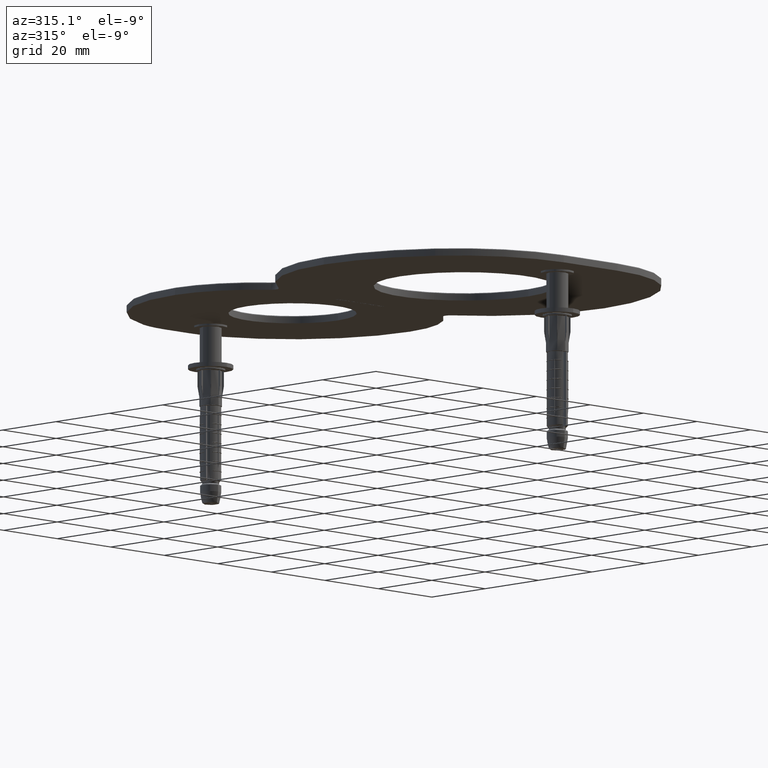
[diagram: clean part render]
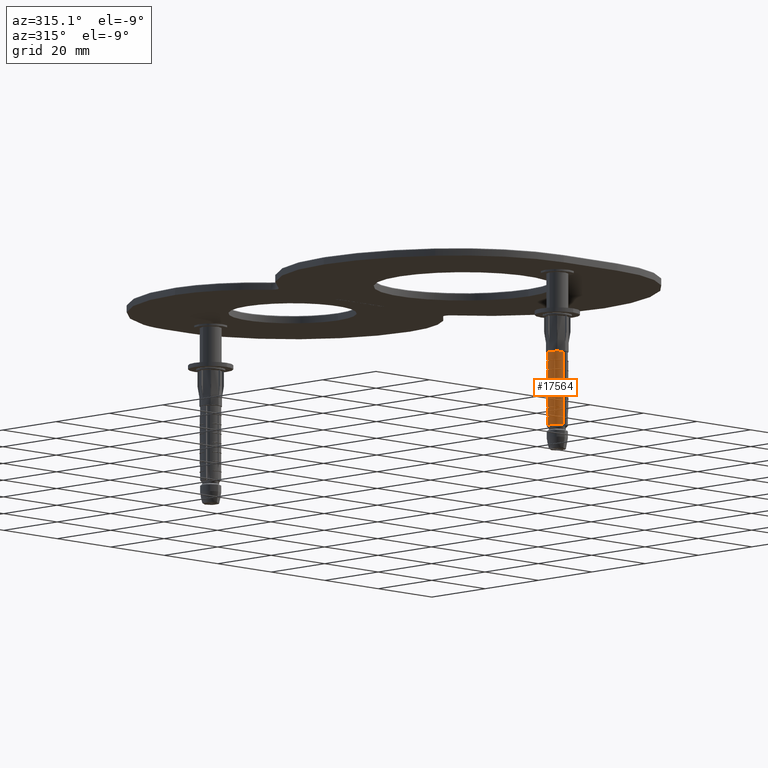
[diagram: same view with one face highlighted and labeled with its STEP entity id]
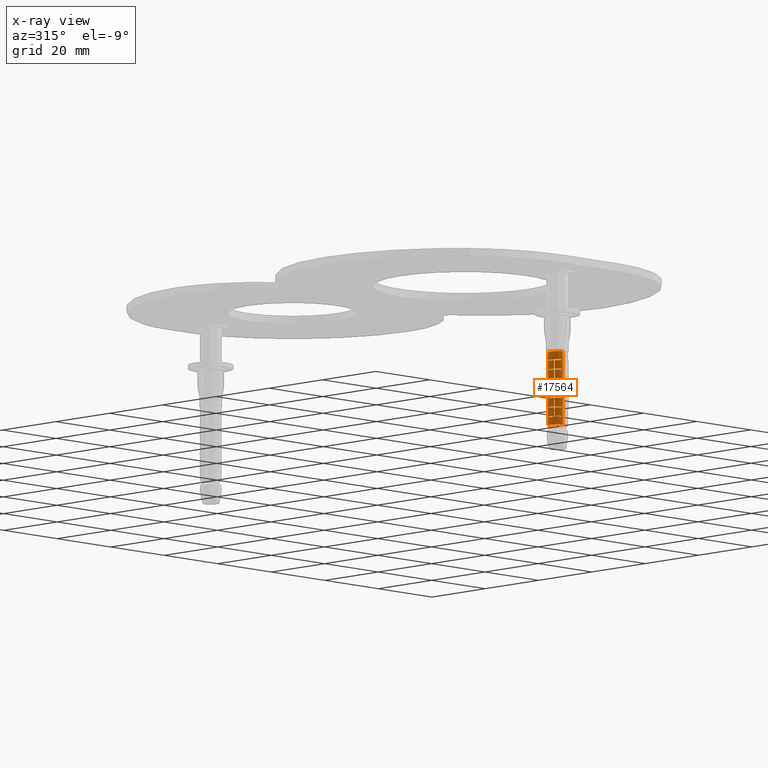
[diagram: x-ray of the same camera — body ghosted, the highlighted face saturated]
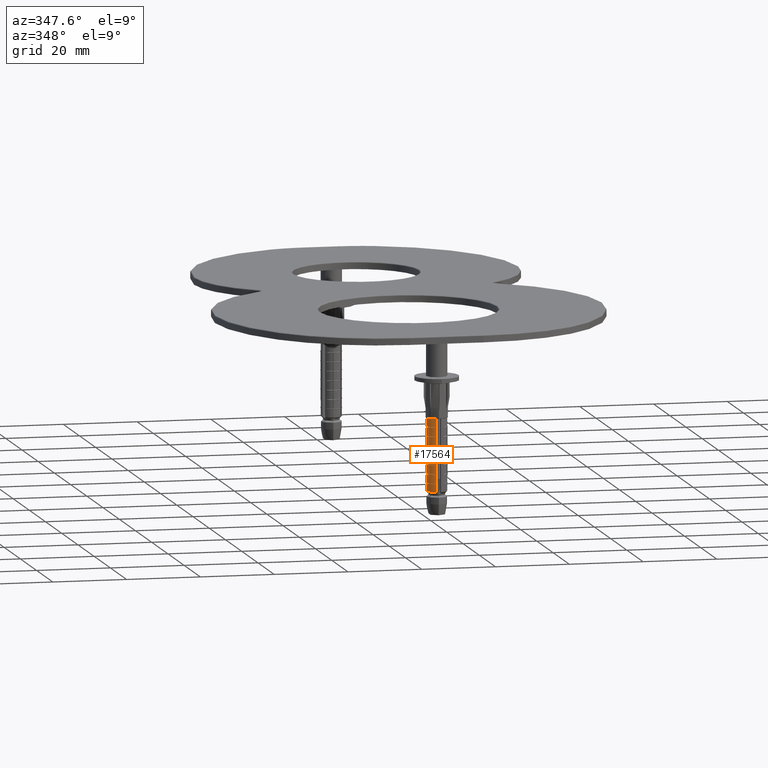
[diagram: same view with one face highlighted and labeled with its STEP entity id]
A machine part, auxiliary view. The second image highlights one B-rep face of the part: STEP entity #17564.
The next image is the same camera in x-ray: the body ghosted, the highlighted face saturated — about 0% of this face is hidden behind the body in this view.
A second angle (auxiliary view) of the same face is appended — the face is thin or edge-on in the first view.
In plain terms, the highlighted cylindrical surface (edge-blend (fillet) strip) has radius 2.8 mm, axis along (-0, -0, -1).
Its self-contained STEP definition (entity closure, byte-faithful):
#208 = DIRECTION ( 'NONE',  ( -4.540655609425253692E-18, 4.182044590197414905E-18, 1.000000000000000000 ) ) ;
#225 = CARTESIAN_POINT ( 'NONE',  ( 1.141974885770451016E-16, -1.051784214434649850E-16, -25.14999999999999858 ) ) ;
#252 = VERTEX_POINT ( 'NONE', #23879 ) ;
#377 = ORIENTED_EDGE ( 'NONE', *, *, #20713, .T. ) ;
#396 = DIRECTION ( 'NONE',  ( 0.8660254037844433705, 0.4999999999999920064, 0.000000000000000000 ) ) ;
#414 = LINE ( 'NONE', #24012, #38780 ) ;
#480 = DIRECTION ( 'NONE',  ( -0.000000000000000000, -6.803593328596414068E-18, -1.000000000000000000 ) ) ;
#544 = CARTESIAN_POINT ( 'NONE',  ( -2.767673818475161251, 0.4242424242424545633, -12.32500000000000107 ) ) ;
#655 = VERTEX_POINT ( 'NONE', #11659 ) ;
#701 = EDGE_CURVE ( 'NONE', #18191, #29613, #20053, .T. ) ;
#797 = DIRECTION ( 'NONE',  ( -0.000000000000000000, -6.803593328596414068E-18, -1.000000000000000000 ) ) ;
#821 = DIRECTION ( 'NONE',  ( -0.000000000000000000, -6.803593328596414068E-18, -1.000000000000000000 ) ) ;
#855 = DIRECTION ( 'NONE',  ( 0.8660254037844433705, 0.4999999999999920064, 0.000000000000000000 ) ) ;
#866 = LINE ( 'NONE', #38831, #11124 ) ;
#880 = VERTEX_POINT ( 'NONE', #4578 ) ;
#882 = VERTEX_POINT ( 'NONE', #32333 ) ;
#976 = CARTESIAN_POINT ( 'NONE',  ( -2.767673818475162140, 0.4242424242424545078, -20.10000000000000142 ) ) ;
#984 = ORIENTED_EDGE ( 'NONE', *, *, #34170, .T. ) ;
#1260 = AXIS2_PLACEMENT_3D ( 'NONE', #20635, #38938, #17560 ) ;
#1418 = CARTESIAN_POINT ( 'NONE',  ( -2.483748580117769222, -1.292668940898235030, -36.00000000000000000 ) ) ;
#1467 = VERTEX_POINT ( 'NONE', #32179 ) ;
#1670 = CARTESIAN_POINT ( 'NONE',  ( -2.483748580117768778, -1.292668940898234364, -14.84999999999999964 ) ) ;
#1698 = CIRCLE ( 'NONE', #4140, 2.799999999999999822 ) ;
#1778 = CARTESIAN_POINT ( 'NONE',  ( -1.016432192480563934, -2.608997048309781963, -36.00000000000000000 ) ) ;
#1890 = ORIENTED_EDGE ( 'NONE', *, *, #31252, .T. ) ;
#1980 = VERTEX_POINT ( 'NONE', #14093 ) ;
#1991 = EDGE_CURVE ( 'NONE', #29272, #28259, #33432, .T. ) ;
#1995 = VERTEX_POINT ( 'NONE', #1670 ) ;
#2070 = CARTESIAN_POINT ( 'NONE',  ( -2.361358431559908766, -1.504654896546356424, -24.94999999999999574 ) ) ;
#2090 = VERTEX_POINT ( 'NONE', #5170 ) ;
#2170 = ORIENTED_EDGE ( 'NONE', *, *, #39024, .T. ) ;
#2257 = DIRECTION ( 'NONE',  ( 0.000000000000000000, 6.803593328596414068E-18, 1.000000000000000000 ) ) ;
#2301 = CARTESIAN_POINT ( 'NONE',  ( 0.000000000000000000, -2.449293598294708880E-16, -36.00000000000000000 ) ) ;
#2334 = AXIS2_PLACEMENT_3D ( 'NONE', #9509, #9781, #19314 ) ;
#2420 = CARTESIAN_POINT ( 'NONE',  ( -1.016432192480563934, -2.608997048309782407, -22.62500000000000000 ) ) ;
#2474 = CIRCLE ( 'NONE', #31577, 2.799999999999999822 ) ;
#2580 = CARTESIAN_POINT ( 'NONE',  ( -2.767673818475161696, 0.4242424242424542857, -27.47499999999999076 ) ) ;
#2856 = CARTESIAN_POINT ( 'NONE',  ( -2.361358431559908322, -1.504654896546355980, -14.84999999999999964 ) ) ;
#2955 = ORIENTED_EDGE ( 'NONE', *, *, #8212, .T. ) ;
#2969 = AXIS2_PLACEMENT_3D ( 'NONE', #26620, #29498, #35740 ) ;
#3000 = AXIS2_PLACEMENT_3D ( 'NONE', #29720, #35826, #39120 ) ;
#3010 = VERTEX_POINT ( 'NONE', #6856 ) ;
#3094 = VECTOR ( 'NONE', #16525, 1000.000000000000000 ) ;
#3266 = CARTESIAN_POINT ( 'NONE',  ( -2.361358431559909210, -1.504654896546356424, -36.00000000000000000 ) ) ;
#3392 = DIRECTION ( 'NONE',  ( 0.8660254037844433705, 0.4999999999999920064, 0.000000000000000000 ) ) ;
#3450 = CARTESIAN_POINT ( 'NONE',  ( -2.483748580117768778, -1.292668940898234364, -17.57499999999999929 ) ) ;
#3585 = EDGE_CURVE ( 'NONE', #9171, #23911, #414, .T. ) ;
#3603 = DIRECTION ( 'NONE',  ( 0.8660254037844433705, 0.4999999999999920064, 0.000000000000000000 ) ) ;
#3678 = CARTESIAN_POINT ( 'NONE',  ( -0.6222222222222225652, -2.729988920521993823, -10.09999999999999787 ) ) ;
#3681 = EDGE_CURVE ( 'NONE', #252, #17792, #10156, .T. ) ;
#3701 = EDGE_CURVE ( 'NONE', #25250, #1995, #18900, .T. ) ;
#4140 = AXIS2_PLACEMENT_3D ( 'NONE', #10228, #31912, #28916 ) ;
#4143 = DIRECTION ( 'NONE',  ( 0.000000000000000000, 6.803593328596414068E-18, 1.000000000000000000 ) ) ;
#4197 = CARTESIAN_POINT ( 'NONE',  ( -2.361358431559908322, -1.504654896546355980, -17.57499999999999929 ) ) ;
#4217 = VERTEX_POINT ( 'NONE', #20499 ) ;
#4227 = CARTESIAN_POINT ( 'NONE',  ( -2.361358431559908766, -1.504654896546356424, -26.31052289814725853 ) ) ;
#4554 = EDGE_CURVE ( 'NONE', #30939, #29272, #16109, .T. ) ;
#4578 = CARTESIAN_POINT ( 'NONE',  ( -2.483748580117768778, -1.292668940898234364, -12.52500000000000213 ) ) ;
#4723 = CARTESIAN_POINT ( 'NONE',  ( -1.016432192480563934, -2.608997048309782407, -12.52500000000000213 ) ) ;
#4741 = CARTESIAN_POINT ( 'NONE',  ( -2.463716330369619456, -1.330570181226455873, -27.37920234786883356 ) ) ;
#4790 = CIRCLE ( 'NONE', #26230, 2.799999999999999378 ) ;
#4797 = ORIENTED_EDGE ( 'NONE', *, *, #36006, .T. ) ;
#4890 = DIRECTION ( 'NONE',  ( -4.540655609425253692E-18, 4.182044590197414905E-18, 1.000000000000000000 ) ) ;
#4914 = CIRCLE ( 'NONE', #24664, 2.799999999999999378 ) ;
#5011 = VECTOR ( 'NONE', #22451, 1000.000000000000000 ) ;
#5012 = DIRECTION ( 'NONE',  ( 0.000000000000000000, 6.803593328596414068E-18, 1.000000000000000000 ) ) ;
#5170 = CARTESIAN_POINT ( 'NONE',  ( -2.361358431559908766, -1.504654896546356424, -20.10000000000000142 ) ) ;
#5299 = LINE ( 'NONE', #1418, #16052 ) ;
#5314 = CARTESIAN_POINT ( 'NONE',  ( -2.767673818475162140, 0.4242424242424546743, -36.00000000000000000 ) ) ;
#5438 = DIRECTION ( 'NONE',  ( -4.540655609425253692E-18, 4.182044590197414905E-18, 1.000000000000000000 ) ) ;
#5563 = ORIENTED_EDGE ( 'NONE', *, *, #33450, .F. ) ;
#5584 = DIRECTION ( 'NONE',  ( 0.8660254037844433705, 0.4999999999999920064, 0.000000000000000000 ) ) ;
#5690 = LINE ( 'NONE', #38164, #21272 ) ;
#5730 = DIRECTION ( 'NONE',  ( -4.540655609425253692E-18, 4.182044590197414905E-18, 1.000000000000000000 ) ) ;
#5760 = ORIENTED_EDGE ( 'NONE', *, *, #38499, .T. ) ;
#5779 = DIRECTION ( 'NONE',  ( 0.8660254037844433705, 0.4999999999999920064, 0.000000000000000000 ) ) ;
#5842 = EDGE_CURVE ( 'NONE', #3010, #32384, #8579, .T. ) ;
#5844 = DIRECTION ( 'NONE',  ( -0.000000000000000000, -6.803593328596414068E-18, -1.000000000000000000 ) ) ;
#5864 = DIRECTION ( 'NONE',  ( -0.000000000000000000, -6.803593328596414068E-18, -1.000000000000000000 ) ) ;
#6014 = CARTESIAN_POINT ( 'NONE',  ( -1.016432192480563712, -2.608997048309782407, -36.00000000000000000 ) ) ;
#6027 = CIRCLE ( 'NONE', #9162, 2.799999999999999378 ) ;
#6056 = CARTESIAN_POINT ( 'NONE',  ( -2.460687915453515284, -1.336044528726880731, -27.57499999999999574 ) ) ;
#6081 = EDGE_CURVE ( 'NONE', #28110, #18429, #29426, .T. ) ;
#6139 = CARTESIAN_POINT ( 'NONE',  ( -2.483748580117769222, -1.292668940898234586, -19.89999999999999858 ) ) ;
#6162 = DIRECTION ( 'NONE',  ( -0.000000000000000000, -6.803593328596414068E-18, -1.000000000000000000 ) ) ;
#6334 = AXIS2_PLACEMENT_3D ( 'NONE', #11864, #39678, #15006 ) ;
#6347 = FACE_OUTER_BOUND ( 'NONE', #18354, .T. ) ;
#6379 = DIRECTION ( 'NONE',  ( -4.540655609425253692E-18, 4.182044590197414905E-18, 1.000000000000000000 ) ) ;
#6397 = CARTESIAN_POINT ( 'NONE',  ( 1.027323331632463865E-16, -9.461875885321650721E-17, -22.62500000000000000 ) ) ;
#6557 = LINE ( 'NONE', #3266, #32304 ) ;
#6639 = CARTESIAN_POINT ( 'NONE',  ( -2.460687915453515284, -1.336044528726880287, -24.94999999999999574 ) ) ;
#6654 = VECTOR ( 'NONE', #26113, 1000.000000000000000 ) ;
#6706 = EDGE_CURVE ( 'NONE', #9853, #15557, #15858, .T. ) ;
#6723 = ORIENTED_EDGE ( 'NONE', *, *, #25525, .F. ) ;
#6731 = CIRCLE ( 'NONE', #23893, 2.799999999999999378 ) ;
#6740 = DIRECTION ( 'NONE',  ( -4.540655609425253692E-18, 4.182044590197414905E-18, 1.000000000000000000 ) ) ;
#6824 = VECTOR ( 'NONE', #2257, 1000.000000000000000 ) ;
#6856 = CARTESIAN_POINT ( 'NONE',  ( -2.767673818475162140, 0.4242424242424546743, -17.57499999999999929 ) ) ;
#6869 = VERTEX_POINT ( 'NONE', #3678 ) ;
#6995 = B_SPLINE_CURVE_WITH_KNOTS ( 'NONE', 3,
 ( #39015, #4741, #38600, #20427, #26461, #17487, #20032, #11359 ),
 .UNSPECIFIED., .F., .F.,
 ( 4, 2, 2, 4 ),
 ( 0.000000000000000000, 0.0002919254474833850982, 0.0005838508949667701965, 0.001167701789933529768 ),
 .UNSPECIFIED. ) ;
#7047 = VECTOR ( 'NONE', #821, 1000.000000000000000 ) ;
#7129 = EDGE_CURVE ( 'NONE', #1980, #15557, #18283, .T. ) ;
#7219 = DIRECTION ( 'NONE',  ( 0.000000000000000000, 6.803593328596414068E-18, 1.000000000000000000 ) ) ;
#7278 = AXIS2_PLACEMENT_3D ( 'NONE', #18861, #9599, #28565 ) ;
#7281 = LINE ( 'NONE', #14465, #33976 ) ;
#7297 = LINE ( 'NONE', #33474, #6824 ) ;
#7300 = EDGE_CURVE ( 'NONE', #17104, #655, #1698, .T. ) ;
#7397 = VERTEX_POINT ( 'NONE', #13522 ) ;
#7414 = CARTESIAN_POINT ( 'NONE',  ( -2.379905641839956676, -1.475161883330798451, -27.28203077829503442 ) ) ;
#7547 = CARTESIAN_POINT ( 'NONE',  ( -2.384165743643222424, -1.468355839208442148, -27.37920234786985674 ) ) ;
#7559 = CARTESIAN_POINT ( 'NONE',  ( -2.361358431559908766, -1.504654896546356424, -26.31052289814725853 ) ) ;
#7793 = ORIENTED_EDGE ( 'NONE', *, *, #17185, .F. ) ;
#7846 = AXIS2_PLACEMENT_3D ( 'NONE', #30405, #38025, #13247 ) ;
#8212 = EDGE_CURVE ( 'NONE', #17104, #11849, #32237, .T. ) ;
#8264 = VERTEX_POINT ( 'NONE', #4197 ) ;
#8265 = ORIENTED_EDGE ( 'NONE', *, *, #26650, .T. ) ;
#8432 = ORIENTED_EDGE ( 'NONE', *, *, #29982, .T. ) ;
#8484 = CARTESIAN_POINT ( 'NONE',  ( 7.980202233564885778E-17, -7.349943367271956395E-17, -17.57499999999999929 ) ) ;
#8579 = CIRCLE ( 'NONE', #39547, 2.799999999999999378 ) ;
#8633 = CARTESIAN_POINT ( 'NONE',  ( 6.742873579996503373E-17, -6.210336216443161118E-17, -14.84999999999999964 ) ) ;
#9162 = AXIS2_PLACEMENT_3D ( 'NONE', #8633, #36439, #33454 ) ;
#9165 = CARTESIAN_POINT ( 'NONE',  ( 9.035904662756253783E-17, -8.322268734492854212E-17, -19.89999999999999858 ) ) ;
#9171 = VERTEX_POINT ( 'NONE', #10315 ) ;
#9195 = CARTESIAN_POINT ( 'NONE',  ( -2.361358431559908322, -1.504654896546355980, -17.37499999999999645 ) ) ;
#9222 = AXIS2_PLACEMENT_3D ( 'NONE', #6397, #25247, #35308 ) ;
#9464 = CIRCLE ( 'NONE', #18305, 2.799999999999999822 ) ;
#9509 = CARTESIAN_POINT ( 'NONE',  ( 9.035904662756253783E-17, -8.322268734492854212E-17, -19.89999999999999858 ) ) ;
#9542 = DIRECTION ( 'NONE',  ( -0.000000000000000000, -6.803593328596414068E-18, -1.000000000000000000 ) ) ;
#9570 = CARTESIAN_POINT ( 'NONE',  ( 6.833686692185005643E-17, -6.293977108247109848E-17, -15.05000000000000071 ) ) ;
#9580 = EDGE_CURVE ( 'NONE', #28259, #655, #24859, .T. ) ;
#9597 = LINE ( 'NONE', #32143, #6654 ) ;
#9599 = DIRECTION ( 'NONE',  ( -4.540655609425253692E-18, 4.182044590197414905E-18, 1.000000000000000000 ) ) ;
#9619 = DIRECTION ( 'NONE',  ( 0.8660254037844433705, 0.4999999999999920064, 0.000000000000000000 ) ) ;
#9781 = DIRECTION ( 'NONE',  ( -4.540655609425253692E-18, 4.182044590197414905E-18, 1.000000000000000000 ) ) ;
#9818 = LINE ( 'NONE', #14010, #37426 ) ;
#9822 = AXIS2_PLACEMENT_3D ( 'NONE', #30249, #36363, #11588 ) ;
#9853 = VERTEX_POINT ( 'NONE', #15299 ) ;
#9928 = DIRECTION ( 'NONE',  ( -4.540655609425253692E-18, 4.182044590197414905E-18, 1.000000000000000000 ) ) ;
#10026 = CARTESIAN_POINT ( 'NONE',  ( -2.361358431559909210, -1.504654896546356424, -36.00000000000000000 ) ) ;
#10037 = ORIENTED_EDGE ( 'NONE', *, *, #28412, .T. ) ;
#10156 = CIRCLE ( 'NONE', #33951, 2.799999999999999822 ) ;
#10228 = CARTESIAN_POINT ( 'NONE',  ( 1.256626439908438660E-16, -1.157380840337134382E-16, -27.67499999999999361 ) ) ;
#10315 = CARTESIAN_POINT ( 'NONE',  ( -2.361358431559908766, -1.504654896546356424, -22.62500000000000000 ) ) ;
#10353 = ORIENTED_EDGE ( 'NONE', *, *, #13193, .T. ) ;
#10419 = CARTESIAN_POINT ( 'NONE',  ( -1.016432192480563712, -2.608997048309781519, -17.37499999999999645 ) ) ;
#10561 = CARTESIAN_POINT ( 'NONE',  ( -2.767673818475162140, 0.4242424242424547298, -12.52500000000000213 ) ) ;
#10613 = CARTESIAN_POINT ( 'NONE',  ( -2.767673818475161696, 0.4242424242424543968, -22.42499999999999716 ) ) ;
#10706 = VECTOR ( 'NONE', #25060, 1000.000000000000000 ) ;
#10751 = CARTESIAN_POINT ( 'NONE',  ( 5.596358038616625703E-17, -5.154369957418313338E-17, -12.32500000000000107 ) ) ;
#10990 = VERTEX_POINT ( 'NONE', #4723 ) ;
#11012 = EDGE_CURVE ( 'NONE', #39604, #4217, #11303, .T. ) ;
#11089 = EDGE_CURVE ( 'NONE', #12838, #1467, #2474, .T. ) ;
#11124 = VECTOR ( 'NONE', #22842, 1000.000000000000000 ) ;
#11273 = DIRECTION ( 'NONE',  ( 0.8660254037844433705, 0.4999999999999920064, 0.000000000000000000 ) ) ;
#11303 = LINE ( 'NONE', #1778, #36486 ) ;
#11359 = CARTESIAN_POINT ( 'NONE',  ( -2.483748580117769222, -1.292668940898234808, -26.31052289814997636 ) ) ;
#11445 = DIRECTION ( 'NONE',  ( -0.000000000000000000, -6.803593328596414068E-18, -1.000000000000000000 ) ) ;
#11498 = VERTEX_POINT ( 'NONE', #10561 ) ;
#11588 = DIRECTION ( 'NONE',  ( 0.8660254037844433705, 0.4999999999999920064, 0.000000000000000000 ) ) ;
#11659 = CARTESIAN_POINT ( 'NONE',  ( -1.016432192480563712, -2.608997048309781963, -27.67499999999999361 ) ) ;
#11714 = ORIENTED_EDGE ( 'NONE', *, *, #33220, .T. ) ;
#11849 = VERTEX_POINT ( 'NONE', #2580 ) ;
#11864 = CARTESIAN_POINT ( 'NONE',  ( 0.000000000000000000, -2.024069015257432827E-16, -29.74999999999999645 ) ) ;
#12200 = ORIENTED_EDGE ( 'NONE', *, *, #12603, .T. ) ;
#12337 = VECTOR ( 'NONE', #5844, 1000.000000000000000 ) ;
#12440 = VERTEX_POINT ( 'NONE', #21559 ) ;
#12495 = EDGE_CURVE ( 'NONE', #33303, #26627, #32513, .T. ) ;
#12500 = DIRECTION ( 'NONE',  ( 0.8660254037844433705, 0.4999999999999920064, 0.000000000000000000 ) ) ;
#12603 = EDGE_CURVE ( 'NONE', #12440, #30556, #5299, .T. ) ;
#12607 = DIRECTION ( 'NONE',  ( -0.000000000000000000, -6.803593328596414068E-18, -1.000000000000000000 ) ) ;
#12838 = VERTEX_POINT ( 'NONE', #976 ) ;
#12994 = VERTEX_POINT ( 'NONE', #17741 ) ;
#12999 = AXIS2_PLACEMENT_3D ( 'NONE', #21682, #208, #12500 ) ;
#13096 = CARTESIAN_POINT ( 'NONE',  ( 7.889389121376377345E-17, -7.266302475468007665E-17, -17.37499999999999645 ) ) ;
#13193 = EDGE_CURVE ( 'NONE', #23911, #1980, #38332, .T. ) ;
#13247 = DIRECTION ( 'NONE',  ( 0.8660254037844433705, 0.4999999999999920064, 0.000000000000000000 ) ) ;
#13258 = LINE ( 'NONE', #27763, #39481 ) ;
#13332 = DIRECTION ( 'NONE',  ( 0.8660254037844433705, 0.4999999999999920064, 0.000000000000000000 ) ) ;
#13439 = AXIS2_PLACEMENT_3D ( 'NONE', #39781, #33753, #5779 ) ;
#13522 = CARTESIAN_POINT ( 'NONE',  ( -2.361358431559908766, -1.504654896546356424, -22.42499999999999716 ) ) ;
#13576 = ORIENTED_EDGE ( 'NONE', *, *, #39063, .T. ) ;
#13641 = VERTEX_POINT ( 'NONE', #544 ) ;
#13666 = ORIENTED_EDGE ( 'NONE', *, *, #4554, .T. ) ;
#13867 = CARTESIAN_POINT ( 'NONE',  ( -2.483748580117769222, -1.292668940898234808, -25.14999999999999858 ) ) ;
#13883 = CARTESIAN_POINT ( 'NONE',  ( -2.767673818475162140, 0.4242424242424544523, -36.00000000000000000 ) ) ;
#14010 = CARTESIAN_POINT ( 'NONE',  ( -2.483748580117769222, -1.292668940898235030, -36.00000000000000000 ) ) ;
#14081 = ORIENTED_EDGE ( 'NONE', *, *, #24070, .T. ) ;
#14093 = CARTESIAN_POINT ( 'NONE',  ( -1.016432192480563490, -2.608997048309781519, -24.94999999999999574 ) ) ;
#14141 = CARTESIAN_POINT ( 'NONE',  ( -2.483748580117769222, -1.292668940898234808, -26.31052289814997636 ) ) ;
#14175 = CARTESIAN_POINT ( 'NONE',  ( -2.483748580117768778, -1.292668940898234364, -15.05000000000000071 ) ) ;
#14418 = ORIENTED_EDGE ( 'NONE', *, *, #39047, .T. ) ;
#14465 = CARTESIAN_POINT ( 'NONE',  ( -1.016432192480563934, -2.608997048309781963, -36.00000000000000000 ) ) ;
#14470 = DIRECTION ( 'NONE',  ( -4.540655609425253692E-18, 4.182044590197414905E-18, 1.000000000000000000 ) ) ;
#14854 = CIRCLE ( 'NONE', #7846, 2.799999999999999378 ) ;
#14973 = EDGE_CURVE ( 'NONE', #39618, #1467, #27832, .T. ) ;
#15006 = DIRECTION ( 'NONE',  ( 0.000000000000000000, 1.000000000000000000, 0.000000000000000000 ) ) ;
#15124 = CARTESIAN_POINT ( 'NONE',  ( -2.460687915453515728, -1.336044528726880731, -22.62500000000000000 ) ) ;
#15299 = CARTESIAN_POINT ( 'NONE',  ( -2.361358431559908766, -1.504654896546356424, -25.14999999999999858 ) ) ;
#15330 = ORIENTED_EDGE ( 'NONE', *, *, #21222, .T. ) ;
#15386 = ORIENTED_EDGE ( 'NONE', *, *, #5842, .F. ) ;
#15427 = CARTESIAN_POINT ( 'NONE',  ( -2.675350868333212784, 0.8261342090173533492, -36.00000000000000000 ) ) ;
#15431 = ORIENTED_EDGE ( 'NONE', *, *, #17278, .T. ) ;
#15557 = VERTEX_POINT ( 'NONE', #27218 ) ;
#15776 = CARTESIAN_POINT ( 'NONE',  ( -2.361358431559909210, -1.504654896546356424, -36.00000000000000000 ) ) ;
#15798 = DIRECTION ( 'NONE',  ( 0.000000000000000000, 6.803593328596414068E-18, 1.000000000000000000 ) ) ;
#15858 = CIRCLE ( 'NONE', #37967, 2.799999999999999822 ) ;
#15954 = CARTESIAN_POINT ( 'NONE',  ( -1.016432192480563712, -2.608997048309782407, -36.00000000000000000 ) ) ;
#15980 = DIRECTION ( 'NONE',  ( 0.8660254037844433705, 0.4999999999999920064, 0.000000000000000000 ) ) ;
#15992 = CARTESIAN_POINT ( 'NONE',  ( -1.016432192480563712, -2.608997048309781519, -14.84999999999999964 ) ) ;
#16052 = VECTOR ( 'NONE', #17094, 1000.000000000000000 ) ;
#16109 = B_SPLINE_CURVE_WITH_KNOTS ( 'NONE', 3,
 ( #4227, #35752, #16949, #32370, #16820, #7414, #7547, #29110 ),
 .UNSPECIFIED., .F., .F.,
 ( 4, 2, 2, 4 ),
 ( 0.000000000000000000, 0.0005836036533015558948, 0.0008754054799523338423, 0.001167207306603111790 ),
 .UNSPECIFIED. ) ;
#16188 = CARTESIAN_POINT ( 'NONE',  ( 9.126717774944759751E-17, -8.405909626296804174E-17, -20.10000000000000142 ) ) ;
#16294 = CARTESIAN_POINT ( 'NONE',  ( 6.742873579996503373E-17, -6.210336216443161118E-17, -14.84999999999999964 ) ) ;
#16406 = EDGE_CURVE ( 'NONE', #13641, #18947, #4914, .T. ) ;
#16426 = CARTESIAN_POINT ( 'NONE',  ( 7.980202233564885778E-17, -7.349943367271956395E-17, -17.57499999999999929 ) ) ;
#16440 = LINE ( 'NONE', #13883, #34341 ) ;
#16525 = DIRECTION ( 'NONE',  ( 0.000000000000000000, 6.803593328596414068E-18, 1.000000000000000000 ) ) ;
#16537 = CIRCLE ( 'NONE', #20753, 2.799999999999999378 ) ;
#16663 = CARTESIAN_POINT ( 'NONE',  ( -2.767673818475161251, 0.4242424242424545633, -14.84999999999999964 ) ) ;
#16751 = ORIENTED_EDGE ( 'NONE', *, *, #9580, .T. ) ;
#16820 = CARTESIAN_POINT ( 'NONE',  ( -2.372170073811461055, -1.487569355360297108, -27.08807541499458083 ) ) ;
#16949 = CARTESIAN_POINT ( 'NONE',  ( -2.363096400378637441, -1.501944770892664760, -26.69959461916634424 ) ) ;
#16959 = CIRCLE ( 'NONE', #33377, 2.799999999999999378 ) ;
#17021 = CARTESIAN_POINT ( 'NONE',  ( -1.016432192480563712, -2.608997048309781963, -22.42499999999999716 ) ) ;
#17094 = DIRECTION ( 'NONE',  ( 0.000000000000000000, 6.803593328596414068E-18, 1.000000000000000000 ) ) ;
#17104 = VERTEX_POINT ( 'NONE', #23329 ) ;
#17185 = EDGE_CURVE ( 'NONE', #28110, #24292, #26240, .T. ) ;
#17278 = EDGE_CURVE ( 'NONE', #1995, #880, #9818, .T. ) ;
#17415 = DIRECTION ( 'NONE',  ( -4.540655609425253692E-18, 4.182044590197414905E-18, 1.000000000000000000 ) ) ;
#17487 = CARTESIAN_POINT ( 'NONE',  ( -2.482270526863567195, -1.295529128873127211, -26.69959461916819521 ) ) ;
#17502 = CARTESIAN_POINT ( 'NONE',  ( -2.767673818475162140, 0.4242424242424544523, -22.62500000000000000 ) ) ;
#17546 = CARTESIAN_POINT ( 'NONE',  ( 6.833686692185005643E-17, -6.293977108247109848E-17, -15.05000000000000071 ) ) ;
#17560 = DIRECTION ( 'NONE',  ( 0.000000000000000000, 1.000000000000000000, 0.000000000000000000 ) ) ;
#17564 = ADVANCED_FACE ( 'NONE', ( #6347, #28714 ), #19035, .T. ) ;
#17667 = EDGE_CURVE ( 'NONE', #25970, #18191, #38425, .T. ) ;
#17728 = VECTOR ( 'NONE', #32345, 1000.000000000000000 ) ;
#17741 = CARTESIAN_POINT ( 'NONE',  ( -2.455181414339814072, -1.346136777107122207, -27.47499999999999076 ) ) ;
#17781 = LINE ( 'NONE', #5314, #36115 ) ;
#17792 = VERTEX_POINT ( 'NONE', #13867 ) ;
#17841 = VECTOR ( 'NONE', #480, 1000.000000000000000 ) ;
#17846 = ORIENTED_EDGE ( 'NONE', *, *, #12495, .F. ) ;
#17885 = ORIENTED_EDGE ( 'NONE', *, *, #23791, .T. ) ;
#18018 = VECTOR ( 'NONE', #39902, 1000.000000000000000 ) ;
#18052 = CARTESIAN_POINT ( 'NONE',  ( -0.6222222222222225652, -2.729988920521993379, -29.74999999999999645 ) ) ;
#18087 = ORIENTED_EDGE ( 'NONE', *, *, #26011, .T. ) ;
#18191 = VERTEX_POINT ( 'NONE', #29955 ) ;
#18247 = EDGE_CURVE ( 'NONE', #23622, #6869, #7297, .T. ) ;
#18283 = LINE ( 'NONE', #15954, #7047 ) ;
#18305 = AXIS2_PLACEMENT_3D ( 'NONE', #35061, #20021, #855 ) ;
#18343 = CARTESIAN_POINT ( 'NONE',  ( -1.016432192480563490, -2.608997048309781519, -27.47499999999999076 ) ) ;
#18354 = EDGE_LOOP ( 'NONE', ( #11714, #19992, #13576, #31609 ) ) ;
#18369 = ORIENTED_EDGE ( 'NONE', *, *, #27054, .T. ) ;
#18385 = DIRECTION ( 'NONE',  ( 0.8660254037844433705, 0.4999999999999920064, 0.000000000000000000 ) ) ;
#18429 = VERTEX_POINT ( 'NONE', #9195 ) ;
#18475 = ORIENTED_EDGE ( 'NONE', *, *, #18555, .T. ) ;
#18555 = EDGE_CURVE ( 'NONE', #18429, #39604, #33507, .T. ) ;
#18768 = ORIENTED_EDGE ( 'NONE', *, *, #17667, .T. ) ;
#18858 = EDGE_CURVE ( 'NONE', #8264, #4217, #4790, .T. ) ;
#18861 = CARTESIAN_POINT ( 'NONE',  ( 7.889389121376377345E-17, -7.266302475468007665E-17, -17.37499999999999645 ) ) ;
#18900 = CIRCLE ( 'NONE', #39477, 2.799999999999999378 ) ;
#18947 = VERTEX_POINT ( 'NONE', #19955 ) ;
#18978 = LINE ( 'NONE', #15776, #10706 ) ;
#19035 = CYLINDRICAL_SURFACE ( 'NONE', #19796, 2.799999999999999822 ) ;
#19314 = DIRECTION ( 'NONE',  ( 0.8660254037844433705, 0.4999999999999920064, 0.000000000000000000 ) ) ;
#19545 = VERTEX_POINT ( 'NONE', #6139 ) ;
#19585 = CIRCLE ( 'NONE', #30000, 2.799999999999999378 ) ;
#19658 = CARTESIAN_POINT ( 'NONE',  ( -2.767673818475161251, 0.4242424242424545078, -17.37499999999999645 ) ) ;
#19796 = AXIS2_PLACEMENT_3D ( 'NONE', #2301, #24035, #36234 ) ;
#19955 = CARTESIAN_POINT ( 'NONE',  ( -2.424871130596440771, -1.399999999999977263, -12.32500000000000107 ) ) ;
#19992 = ORIENTED_EDGE ( 'NONE', *, *, #18247, .T. ) ;
#20021 = DIRECTION ( 'NONE',  ( -4.540655609425253692E-18, 4.182044590197414905E-18, 1.000000000000000000 ) ) ;
#20032 = CARTESIAN_POINT ( 'NONE',  ( -2.483748580118025018, -1.292668940897744312, -26.50506116889642172 ) ) ;
#20053 = LINE ( 'NONE', #36694, #22460 ) ;
#20330 = CARTESIAN_POINT ( 'NONE',  ( -2.675350868333212340, 0.8261342090173533492, -29.74999999999999645 ) ) ;
#20427 = CARTESIAN_POINT ( 'NONE',  ( -2.474357888538981420, -1.310574868337798460, -27.08807541499556137 ) ) ;
#20439 = CARTESIAN_POINT ( 'NONE',  ( 5.687171150805130437E-17, -5.238010849222262684E-17, -12.52500000000000213 ) ) ;
#20499 = CARTESIAN_POINT ( 'NONE',  ( -1.016432192480564156, -2.608997048309782407, -17.57499999999999929 ) ) ;
#20613 = VECTOR ( 'NONE', #24096, 1000.000000000000000 ) ;
#20635 = CARTESIAN_POINT ( 'NONE',  ( 0.000000000000000000, -6.871629261882377608E-17, -10.09999999999999787 ) ) ;
#20687 = DIRECTION ( 'NONE',  ( -0.000000000000000000, -6.803593328596414068E-18, -1.000000000000000000 ) ) ;
#20706 = ORIENTED_EDGE ( 'NONE', *, *, #1991, .T. ) ;
#20713 = EDGE_CURVE ( 'NONE', #30431, #35362, #866, .T. ) ;
#20726 = DIRECTION ( 'NONE',  ( 0.000000000000000000, 6.803593328596414068E-18, 1.000000000000000000 ) ) ;
#20748 = AXIS2_PLACEMENT_3D ( 'NONE', #32993, #14470, #36099 ) ;
#20753 = AXIS2_PLACEMENT_3D ( 'NONE', #9570, #37367, #15980 ) ;
#20807 = VECTOR ( 'NONE', #797, 1000.000000000000000 ) ;
#21222 = EDGE_CURVE ( 'NONE', #23737, #12440, #16959, .T. ) ;
#21272 = VECTOR ( 'NONE', #7219, 1000.000000000000000 ) ;
#21323 = CARTESIAN_POINT ( 'NONE',  ( 9.126717774944759751E-17, -8.405909626296804174E-17, -20.10000000000000142 ) ) ;
#21376 = DIRECTION ( 'NONE',  ( -4.540655609425253692E-18, 4.182044590197414905E-18, 1.000000000000000000 ) ) ;
#21559 = CARTESIAN_POINT ( 'NONE',  ( -2.483748580117768778, -1.292668940898234364, -17.37499999999999645 ) ) ;
#21682 = CARTESIAN_POINT ( 'NONE',  ( 1.247545128689588310E-16, -1.149016751156739262E-16, -27.47499999999999076 ) ) ;
#21699 = DIRECTION ( 'NONE',  ( 0.000000000000000000, 6.803593328596414068E-18, 1.000000000000000000 ) ) ;
#21717 = EDGE_LOOP ( 'NONE', ( #14081, #13666, #20706, #16751, #33713, #2955, #18369, #17885, #27918, #36839, #14418, #36352, #17846, #28809, #8432, #34560, #37214, #27684, #5760, #27355, #18087, #15386, #2170, #15330, #12200, #6723, #1890, #26878, #15431, #5563, #984, #36628, #36607, #25684, #31310, #40300, #35960, #37419, #7793, #34443, #18475, #31132, #22055, #8265, #18768, #34876, #37782, #10037, #4797, #377, #35396, #26385, #10353, #22211, #25453 ) ) ;
#21748 = CIRCLE ( 'NONE', #1260, 2.799999999999999822 ) ;
#21895 = VERTEX_POINT ( 'NONE', #23437 ) ;
#22055 = ORIENTED_EDGE ( 'NONE', *, *, #18858, .F. ) ;
#22211 = ORIENTED_EDGE ( 'NONE', *, *, #7129, .T. ) ;
#22236 = DIRECTION ( 'NONE',  ( -4.540655609425253692E-18, 4.182044590197414905E-18, 1.000000000000000000 ) ) ;
#22405 = CARTESIAN_POINT ( 'NONE',  ( -2.483748580117769222, -1.292668940898235030, -36.00000000000000000 ) ) ;
#22451 = DIRECTION ( 'NONE',  ( 0.000000000000000000, 6.803593328596414068E-18, 1.000000000000000000 ) ) ;
#22460 = VECTOR ( 'NONE', #5864, 1000.000000000000000 ) ;
#22842 = DIRECTION ( 'NONE',  ( -0.000000000000000000, -6.803593328596414068E-18, -1.000000000000000000 ) ) ;
#23329 = CARTESIAN_POINT ( 'NONE',  ( -2.767673818475162140, 0.4242424242424543412, -27.67499999999999361 ) ) ;
#23437 = CARTESIAN_POINT ( 'NONE',  ( -2.767673818475161696, 0.4242424242424543968, -24.94999999999999574 ) ) ;
#23478 = LINE ( 'NONE', #15427, #12337 ) ;
#23502 = VERTEX_POINT ( 'NONE', #36311 ) ;
#23622 = VERTEX_POINT ( 'NONE', #18052 ) ;
#23688 = VERTEX_POINT ( 'NONE', #15992 ) ;
#23710 = LINE ( 'NONE', #31737, #20807 ) ;
#23737 = VERTEX_POINT ( 'NONE', #19658 ) ;
#23791 = EDGE_CURVE ( 'NONE', #12994, #32006, #6995, .T. ) ;
#23879 = CARTESIAN_POINT ( 'NONE',  ( -2.767673818475162140, 0.4242424242424544523, -25.14999999999999858 ) ) ;
#23893 = AXIS2_PLACEMENT_3D ( 'NONE', #20439, #4890, #26622 ) ;
#23911 = VERTEX_POINT ( 'NONE', #2070 ) ;
#23966 = VERTEX_POINT ( 'NONE', #2856 ) ;
#24012 = CARTESIAN_POINT ( 'NONE',  ( -2.361358431559909210, -1.504654896546356424, -36.00000000000000000 ) ) ;
#24035 = DIRECTION ( 'NONE',  ( -0.000000000000000000, -6.803593328596413297E-18, -1.000000000000000000 ) ) ;
#24070 = EDGE_CURVE ( 'NONE', #9853, #30939, #6557, .T. ) ;
#24096 = DIRECTION ( 'NONE',  ( -0.000000000000000000, -6.803593328596414068E-18, -1.000000000000000000 ) ) ;
#24292 = VERTEX_POINT ( 'NONE', #38814 ) ;
#24388 = VECTOR ( 'NONE', #6162, 1000.000000000000000 ) ;
#24595 = DIRECTION ( 'NONE',  ( 0.8660254037844433705, 0.4999999999999920064, 0.000000000000000000 ) ) ;
#24664 = AXIS2_PLACEMENT_3D ( 'NONE', #10751, #17415, #26541 ) ;
#24677 = CARTESIAN_POINT ( 'NONE',  ( -2.361358431559908766, -1.504654896546356202, -19.89999999999999858 ) ) ;
#24855 = AXIS2_PLACEMENT_3D ( 'NONE', #9165, #5730, #24595 ) ;
#24859 = LINE ( 'NONE', #37386, #24388 ) ;
#25060 = DIRECTION ( 'NONE',  ( -0.000000000000000000, -6.803593328596414068E-18, -1.000000000000000000 ) ) ;
#25136 = VERTEX_POINT ( 'NONE', #37390 ) ;
#25247 = DIRECTION ( 'NONE',  ( -4.540655609425253692E-18, 4.182044590197414905E-18, 1.000000000000000000 ) ) ;
#25250 = VERTEX_POINT ( 'NONE', #16663 ) ;
#25453 = ORIENTED_EDGE ( 'NONE', *, *, #6706, .F. ) ;
#25459 = EDGE_CURVE ( 'NONE', #35093, #19545, #39018, .T. ) ;
#25503 = CARTESIAN_POINT ( 'NONE',  ( -2.767673818475161696, 0.4242424242424544523, -19.89999999999999858 ) ) ;
#25525 = EDGE_CURVE ( 'NONE', #882, #30556, #16537, .T. ) ;
#25684 = ORIENTED_EDGE ( 'NONE', *, *, #31221, .T. ) ;
#25970 = VERTEX_POINT ( 'NONE', #24677 ) ;
#25979 = LINE ( 'NONE', #10026, #17841 ) ;
#26011 = EDGE_CURVE ( 'NONE', #19545, #32384, #30489, .T. ) ;
#26113 = DIRECTION ( 'NONE',  ( 0.000000000000000000, 6.803593328596414068E-18, 1.000000000000000000 ) ) ;
#26195 = CARTESIAN_POINT ( 'NONE',  ( -2.483748580117769222, -1.292668940898234808, -22.42499999999999716 ) ) ;
#26230 = AXIS2_PLACEMENT_3D ( 'NONE', #8484, #5438, #30161 ) ;
#26240 = CIRCLE ( 'NONE', #28847, 2.799999999999999378 ) ;
#26385 = ORIENTED_EDGE ( 'NONE', *, *, #3585, .T. ) ;
#26461 = CARTESIAN_POINT ( 'NONE',  ( -2.476745546490385141, -1.306042560950300802, -26.99099585964534498 ) ) ;
#26541 = DIRECTION ( 'NONE',  ( 0.8660254037844433705, 0.4999999999999920064, 0.000000000000000000 ) ) ;
#26620 = CARTESIAN_POINT ( 'NONE',  ( 1.247545128689588310E-16, -1.149016751156739262E-16, -27.47499999999999076 ) ) ;
#26622 = DIRECTION ( 'NONE',  ( 0.8660254037844433705, 0.4999999999999920064, 0.000000000000000000 ) ) ;
#26627 = VERTEX_POINT ( 'NONE', #6639 ) ;
#26650 = EDGE_CURVE ( 'NONE', #8264, #25970, #23710, .T. ) ;
#26878 = ORIENTED_EDGE ( 'NONE', *, *, #3701, .T. ) ;
#27054 = EDGE_CURVE ( 'NONE', #11849, #12994, #30925, .T. ) ;
#27218 = CARTESIAN_POINT ( 'NONE',  ( -1.016432192480563712, -2.608997048309781963, -25.14999999999999858 ) ) ;
#27230 = CARTESIAN_POINT ( 'NONE',  ( -2.393379353113320729, -1.453181087163902374, -27.47499999999999076 ) ) ;
#27355 = ORIENTED_EDGE ( 'NONE', *, *, #25459, .T. ) ;
#27377 = DIRECTION ( 'NONE',  ( -0.000000000000000000, -6.803593328596414068E-18, -1.000000000000000000 ) ) ;
#27684 = ORIENTED_EDGE ( 'NONE', *, *, #11089, .F. ) ;
#27763 = CARTESIAN_POINT ( 'NONE',  ( -2.767673818475162140, 0.4242424242424546743, -36.00000000000000000 ) ) ;
#27832 = LINE ( 'NONE', #38598, #17728 ) ;
#27918 = ORIENTED_EDGE ( 'NONE', *, *, #31417, .T. ) ;
#28000 = CARTESIAN_POINT ( 'NONE',  ( -2.361358431559909210, -1.504654896546356424, -36.00000000000000000 ) ) ;
#28110 = VERTEX_POINT ( 'NONE', #38410 ) ;
#28213 = DIRECTION ( 'NONE',  ( 0.8660254037844433705, 0.4999999999999920064, 0.000000000000000000 ) ) ;
#28259 = VERTEX_POINT ( 'NONE', #18343 ) ;
#28412 = EDGE_CURVE ( 'NONE', #2090, #7397, #25979, .T. ) ;
#28477 = CARTESIAN_POINT ( 'NONE',  ( 5.687171150805130437E-17, -5.238010849222262684E-17, -12.52500000000000213 ) ) ;
#28565 = DIRECTION ( 'NONE',  ( 0.8660254037844433705, 0.4999999999999920064, 0.000000000000000000 ) ) ;
#28714 = FACE_BOUND ( 'NONE', #21717, .T. ) ;
#28809 = ORIENTED_EDGE ( 'NONE', *, *, #34094, .F. ) ;
#28847 = AXIS2_PLACEMENT_3D ( 'NONE', #17546, #39224, #11273 ) ;
#28916 = DIRECTION ( 'NONE',  ( 0.8660254037844433705, 0.4999999999999920064, 0.000000000000000000 ) ) ;
#29110 = CARTESIAN_POINT ( 'NONE',  ( -2.393379353113320729, -1.453181087163902374, -27.47499999999999076 ) ) ;
#29272 = VERTEX_POINT ( 'NONE', #27230 ) ;
#29338 = CARTESIAN_POINT ( 'NONE',  ( -2.767673818475162140, 0.4242424242424543968, -36.00000000000000000 ) ) ;
#29387 = DIRECTION ( 'NONE',  ( -4.540655609425253692E-18, 4.182044590197414905E-18, 1.000000000000000000 ) ) ;
#29426 = LINE ( 'NONE', #28000, #39675 ) ;
#29498 = DIRECTION ( 'NONE',  ( -4.540655609425253692E-18, 4.182044590197414905E-18, 1.000000000000000000 ) ) ;
#29548 = VERTEX_POINT ( 'NONE', #20330 ) ;
#29613 = VERTEX_POINT ( 'NONE', #30057 ) ;
#29629 = EDGE_CURVE ( 'NONE', #23966, #23688, #6027, .T. ) ;
#29720 = CARTESIAN_POINT ( 'NONE',  ( 1.018242020413613022E-16, -9.378234993517700759E-17, -22.42499999999999716 ) ) ;
#29815 = LINE ( 'NONE', #37492, #5011 ) ;
#29825 = DIRECTION ( 'NONE',  ( 0.000000000000000000, 6.803593328596414068E-18, 1.000000000000000000 ) ) ;
#29882 = EDGE_CURVE ( 'NONE', #21895, #26627, #9464, .T. ) ;
#29955 = CARTESIAN_POINT ( 'NONE',  ( -1.016432192480563934, -2.608997048309781519, -19.89999999999999858 ) ) ;
#29982 = EDGE_CURVE ( 'NONE', #38200, #40001, #39589, .T. ) ;
#30000 = AXIS2_PLACEMENT_3D ( 'NONE', #28477, #9928, #28213 ) ;
#30057 = CARTESIAN_POINT ( 'NONE',  ( -1.016432192480564378, -2.608997048309782407, -20.10000000000000142 ) ) ;
#30161 = DIRECTION ( 'NONE',  ( 0.8660254037844433705, 0.4999999999999920064, 0.000000000000000000 ) ) ;
#30168 = EDGE_CURVE ( 'NONE', #18947, #25136, #14854, .T. ) ;
#30249 = CARTESIAN_POINT ( 'NONE',  ( 1.018242020413613022E-16, -9.378234993517700759E-17, -22.42499999999999716 ) ) ;
#30405 = CARTESIAN_POINT ( 'NONE',  ( 5.596358038616625703E-17, -5.154369957418313338E-17, -12.32500000000000107 ) ) ;
#30431 = VERTEX_POINT ( 'NONE', #17021 ) ;
#30489 = LINE ( 'NONE', #22405, #36341 ) ;
#30556 = VERTEX_POINT ( 'NONE', #14175 ) ;
#30925 = CIRCLE ( 'NONE', #12999, 2.799999999999999822 ) ;
#30939 = VERTEX_POINT ( 'NONE', #7559 ) ;
#31132 = ORIENTED_EDGE ( 'NONE', *, *, #11012, .T. ) ;
#31221 = EDGE_CURVE ( 'NONE', #25136, #10990, #35191, .T. ) ;
#31252 = EDGE_CURVE ( 'NONE', #882, #25250, #17781, .T. ) ;
#31272 = VECTOR ( 'NONE', #5012, 1000.000000000000000 ) ;
#31310 = ORIENTED_EDGE ( 'NONE', *, *, #38109, .F. ) ;
#31342 = VERTEX_POINT ( 'NONE', #37360 ) ;
#31417 = EDGE_CURVE ( 'NONE', #32006, #17792, #29815, .T. ) ;
#31577 = AXIS2_PLACEMENT_3D ( 'NONE', #16188, #31884, #396 ) ;
#31609 = ORIENTED_EDGE ( 'NONE', *, *, #32786, .T. ) ;
#31737 = CARTESIAN_POINT ( 'NONE',  ( -2.361358431559909210, -1.504654896546356424, -36.00000000000000000 ) ) ;
#31884 = DIRECTION ( 'NONE',  ( -4.540655609425253692E-18, 4.182044590197414905E-18, 1.000000000000000000 ) ) ;
#31912 = DIRECTION ( 'NONE',  ( -4.540655609425253692E-18, 4.182044590197414905E-18, 1.000000000000000000 ) ) ;
#32006 = VERTEX_POINT ( 'NONE', #14141 ) ;
#32143 = CARTESIAN_POINT ( 'NONE',  ( -2.767673818475162140, 0.4242424242424546188, -36.00000000000000000 ) ) ;
#32179 = CARTESIAN_POINT ( 'NONE',  ( -2.483748580117769222, -1.292668940898234808, -20.10000000000000142 ) ) ;
#32237 = LINE ( 'NONE', #37799, #3094 ) ;
#32304 = VECTOR ( 'NONE', #9542, 1000.000000000000000 ) ;
#32333 = CARTESIAN_POINT ( 'NONE',  ( -2.767673818475162140, 0.4242424242424547298, -15.05000000000000071 ) ) ;
#32345 = DIRECTION ( 'NONE',  ( 0.000000000000000000, 6.803593328596414068E-18, 1.000000000000000000 ) ) ;
#32370 = CARTESIAN_POINT ( 'NONE',  ( -2.369438809451833272, -1.491903281495504885, -26.99099585964414771 ) ) ;
#32384 = VERTEX_POINT ( 'NONE', #3450 ) ;
#32513 = LINE ( 'NONE', #6056, #18018 ) ;
#32786 = EDGE_CURVE ( 'NONE', #31342, #29548, #23478, .T. ) ;
#32870 = EDGE_CURVE ( 'NONE', #9171, #35362, #39523, .T. ) ;
#32993 = CARTESIAN_POINT ( 'NONE',  ( 1.132893574551600419E-16, -1.043420125254254854E-16, -24.94999999999999574 ) ) ;
#33220 = EDGE_CURVE ( 'NONE', #29548, #23622, #39980, .T. ) ;
#33285 = EDGE_CURVE ( 'NONE', #2090, #29613, #36041, .T. ) ;
#33303 = VERTEX_POINT ( 'NONE', #15124 ) ;
#33377 = AXIS2_PLACEMENT_3D ( 'NONE', #13096, #6379, #3392 ) ;
#33432 = CIRCLE ( 'NONE', #2969, 2.799999999999999822 ) ;
#33450 = EDGE_CURVE ( 'NONE', #11498, #880, #19585, .T. ) ;
#33454 = DIRECTION ( 'NONE',  ( 0.8660254037844433705, 0.4999999999999920064, 0.000000000000000000 ) ) ;
#33474 = CARTESIAN_POINT ( 'NONE',  ( -0.6222222222222226762, -2.729988920521994267, -36.00000000000000000 ) ) ;
#33507 = CIRCLE ( 'NONE', #7278, 2.799999999999999378 ) ;
#33713 = ORIENTED_EDGE ( 'NONE', *, *, #7300, .F. ) ;
#33753 = DIRECTION ( 'NONE',  ( -4.540655609425253692E-18, 4.182044590197414905E-18, 1.000000000000000000 ) ) ;
#33951 = AXIS2_PLACEMENT_3D ( 'NONE', #225, #6740, #9619 ) ;
#33976 = VECTOR ( 'NONE', #27377, 1000.000000000000000 ) ;
#34094 = EDGE_CURVE ( 'NONE', #38200, #33303, #39935, .T. ) ;
#34170 = EDGE_CURVE ( 'NONE', #11498, #13641, #13258, .T. ) ;
#34341 = VECTOR ( 'NONE', #4143, 1000.000000000000000 ) ;
#34443 = ORIENTED_EDGE ( 'NONE', *, *, #6081, .T. ) ;
#34494 = CIRCLE ( 'NONE', #9822, 2.799999999999999822 ) ;
#34560 = ORIENTED_EDGE ( 'NONE', *, *, #35901, .T. ) ;
#34876 = ORIENTED_EDGE ( 'NONE', *, *, #701, .T. ) ;
#34948 = AXIS2_PLACEMENT_3D ( 'NONE', #21323, #37177, #18385 ) ;
#34971 = CIRCLE ( 'NONE', #3000, 2.799999999999999822 ) ;
#35061 = CARTESIAN_POINT ( 'NONE',  ( 1.132893574551600419E-16, -1.043420125254254854E-16, -24.94999999999999574 ) ) ;
#35093 = VERTEX_POINT ( 'NONE', #25503 ) ;
#35191 = LINE ( 'NONE', #6014, #20613 ) ;
#35308 = DIRECTION ( 'NONE',  ( 0.8660254037844433705, 0.4999999999999920064, 0.000000000000000000 ) ) ;
#35362 = VERTEX_POINT ( 'NONE', #2420 ) ;
#35396 = ORIENTED_EDGE ( 'NONE', *, *, #32870, .F. ) ;
#35740 = DIRECTION ( 'NONE',  ( 0.8660254037844433705, 0.4999999999999920064, 0.000000000000000000 ) ) ;
#35752 = CARTESIAN_POINT ( 'NONE',  ( -2.361358431559801296, -1.504654896546524068, -26.50506116889412667 ) ) ;
#35826 = DIRECTION ( 'NONE',  ( -4.540655609425253692E-18, 4.182044590197414905E-18, 1.000000000000000000 ) ) ;
#35901 = EDGE_CURVE ( 'NONE', #40001, #39618, #34971, .T. ) ;
#35960 = ORIENTED_EDGE ( 'NONE', *, *, #29629, .T. ) ;
#36003 = EDGE_CURVE ( 'NONE', #23688, #24292, #7281, .T. ) ;
#36006 = EDGE_CURVE ( 'NONE', #7397, #30431, #34494, .T. ) ;
#36041 = CIRCLE ( 'NONE', #34948, 2.799999999999999822 ) ;
#36099 = DIRECTION ( 'NONE',  ( 0.8660254037844433705, 0.4999999999999920064, 0.000000000000000000 ) ) ;
#36115 = VECTOR ( 'NONE', #20726, 1000.000000000000000 ) ;
#36234 = DIRECTION ( 'NONE',  ( 0.000000000000000000, 1.000000000000000000, 0.000000000000000000 ) ) ;
#36252 = EDGE_CURVE ( 'NONE', #23502, #23966, #18978, .T. ) ;
#36311 = CARTESIAN_POINT ( 'NONE',  ( -2.361358431559908322, -1.504654896546355980, -12.52500000000000213 ) ) ;
#36341 = VECTOR ( 'NONE', #15798, 1000.000000000000000 ) ;
#36352 = ORIENTED_EDGE ( 'NONE', *, *, #29882, .T. ) ;
#36363 = DIRECTION ( 'NONE',  ( -4.540655609425253692E-18, 4.182044590197414905E-18, 1.000000000000000000 ) ) ;
#36439 = DIRECTION ( 'NONE',  ( -4.540655609425253692E-18, 4.182044590197414905E-18, 1.000000000000000000 ) ) ;
#36486 = VECTOR ( 'NONE', #20687, 1000.000000000000000 ) ;
#36607 = ORIENTED_EDGE ( 'NONE', *, *, #30168, .T. ) ;
#36628 = ORIENTED_EDGE ( 'NONE', *, *, #16406, .T. ) ;
#36694 = CARTESIAN_POINT ( 'NONE',  ( -1.016432192480564156, -2.608997048309781963, -36.00000000000000000 ) ) ;
#36839 = ORIENTED_EDGE ( 'NONE', *, *, #3681, .F. ) ;
#37177 = DIRECTION ( 'NONE',  ( -4.540655609425253692E-18, 4.182044590197414905E-18, 1.000000000000000000 ) ) ;
#37214 = ORIENTED_EDGE ( 'NONE', *, *, #14973, .T. ) ;
#37360 = CARTESIAN_POINT ( 'NONE',  ( -2.675350868333212340, 0.8261342090173534602, -10.09999999999999787 ) ) ;
#37367 = DIRECTION ( 'NONE',  ( -4.540655609425253692E-18, 4.182044590197414905E-18, 1.000000000000000000 ) ) ;
#37386 = CARTESIAN_POINT ( 'NONE',  ( -1.016432192480563712, -2.608997048309782407, -36.00000000000000000 ) ) ;
#37390 = CARTESIAN_POINT ( 'NONE',  ( -1.016432192480563490, -2.608997048309781519, -12.32500000000000107 ) ) ;
#37419 = ORIENTED_EDGE ( 'NONE', *, *, #36003, .T. ) ;
#37426 = VECTOR ( 'NONE', #29825, 1000.000000000000000 ) ;
#37492 = CARTESIAN_POINT ( 'NONE',  ( -2.483748580117769222, -1.292668940898235030, -36.00000000000000000 ) ) ;
#37782 = ORIENTED_EDGE ( 'NONE', *, *, #33285, .F. ) ;
#37799 = CARTESIAN_POINT ( 'NONE',  ( -2.767673818475162140, 0.4242424242424543412, -36.00000000000000000 ) ) ;
#37967 = AXIS2_PLACEMENT_3D ( 'NONE', #39993, #21376, #5584 ) ;
#38025 = DIRECTION ( 'NONE',  ( -4.540655609425253692E-18, 4.182044590197414905E-18, 1.000000000000000000 ) ) ;
#38109 = EDGE_CURVE ( 'NONE', #23502, #10990, #6731, .T. ) ;
#38164 = CARTESIAN_POINT ( 'NONE',  ( -2.767673818475162140, 0.4242424242424544523, -36.00000000000000000 ) ) ;
#38200 = VERTEX_POINT ( 'NONE', #17502 ) ;
#38332 = CIRCLE ( 'NONE', #20748, 2.799999999999999822 ) ;
#38410 = CARTESIAN_POINT ( 'NONE',  ( -2.361358431559908322, -1.504654896546355980, -15.05000000000000071 ) ) ;
#38425 = CIRCLE ( 'NONE', #2334, 2.799999999999999822 ) ;
#38499 = EDGE_CURVE ( 'NONE', #12838, #35093, #5690, .T. ) ;
#38598 = CARTESIAN_POINT ( 'NONE',  ( -2.483748580117769222, -1.292668940898235252, -36.00000000000000000 ) ) ;
#38600 = CARTESIAN_POINT ( 'NONE',  ( -2.467480486578948362, -1.323477802777908829, -27.28203077829557088 ) ) ;
#38780 = VECTOR ( 'NONE', #11445, 1000.000000000000000 ) ;
#38814 = CARTESIAN_POINT ( 'NONE',  ( -1.016432192480564156, -2.608997048309782407, -15.05000000000000071 ) ) ;
#38831 = CARTESIAN_POINT ( 'NONE',  ( -1.016432192480563712, -2.608997048309782407, -36.00000000000000000 ) ) ;
#38938 = DIRECTION ( 'NONE',  ( -0.000000000000000000, -6.803593328596413297E-18, -1.000000000000000000 ) ) ;
#39015 = CARTESIAN_POINT ( 'NONE',  ( -2.455181414339814072, -1.346136777107122207, -27.47499999999999076 ) ) ;
#39018 = CIRCLE ( 'NONE', #24855, 2.799999999999999822 ) ;
#39024 = EDGE_CURVE ( 'NONE', #3010, #23737, #9597, .T. ) ;
#39047 = EDGE_CURVE ( 'NONE', #252, #21895, #16440, .T. ) ;
#39063 = EDGE_CURVE ( 'NONE', #6869, #31342, #21748, .T. ) ;
#39120 = DIRECTION ( 'NONE',  ( 0.8660254037844433705, 0.4999999999999920064, 0.000000000000000000 ) ) ;
#39224 = DIRECTION ( 'NONE',  ( -4.540655609425253692E-18, 4.182044590197414905E-18, 1.000000000000000000 ) ) ;
#39477 = AXIS2_PLACEMENT_3D ( 'NONE', #16294, #22236, #3603 ) ;
#39481 = VECTOR ( 'NONE', #21699, 1000.000000000000000 ) ;
#39523 = CIRCLE ( 'NONE', #9222, 2.799999999999999822 ) ;
#39547 = AXIS2_PLACEMENT_3D ( 'NONE', #16426, #29387, #13332 ) ;
#39589 = LINE ( 'NONE', #29338, #31272 ) ;
#39604 = VERTEX_POINT ( 'NONE', #10419 ) ;
#39618 = VERTEX_POINT ( 'NONE', #26195 ) ;
#39675 = VECTOR ( 'NONE', #12607, 1000.000000000000000 ) ;
#39678 = DIRECTION ( 'NONE',  ( 0.000000000000000000, 6.803593328596413297E-18, 1.000000000000000000 ) ) ;
#39781 = CARTESIAN_POINT ( 'NONE',  ( 1.027323331632463865E-16, -9.461875885321650721E-17, -22.62500000000000000 ) ) ;
#39902 = DIRECTION ( 'NONE',  ( -5.892084659582852829E-18, -1.020538999289456486E-17, -1.000000000000000000 ) ) ;
#39935 = CIRCLE ( 'NONE', #13439, 2.799999999999999822 ) ;
#39980 = CIRCLE ( 'NONE', #6334, 2.799999999999999822 ) ;
#39993 = CARTESIAN_POINT ( 'NONE',  ( 1.141974885770451016E-16, -1.051784214434649850E-16, -25.14999999999999858 ) ) ;
#40001 = VERTEX_POINT ( 'NONE', #10613 ) ;
#40300 = ORIENTED_EDGE ( 'NONE', *, *, #36252, .T. ) ;